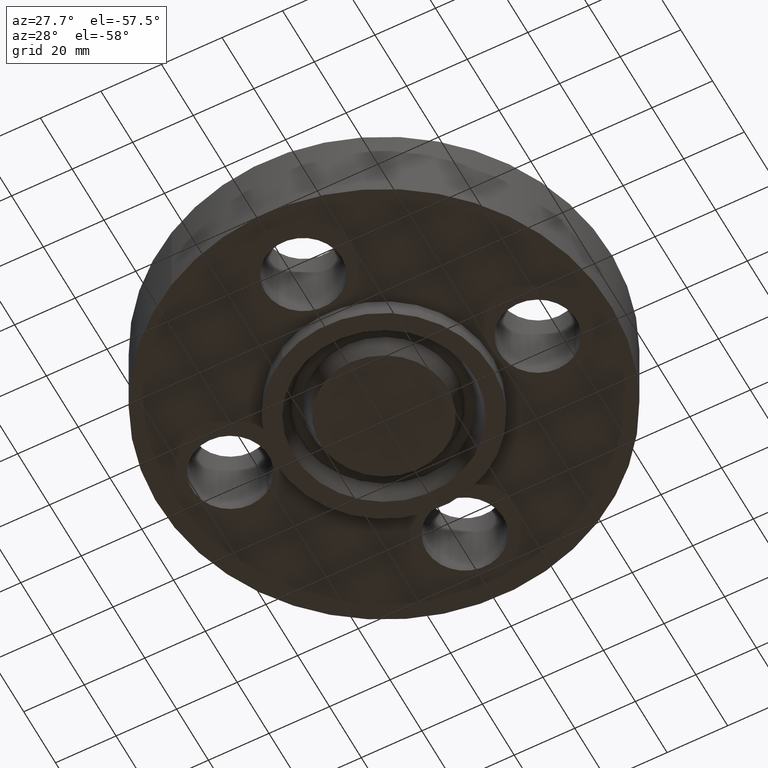
[diagram: clean part render]
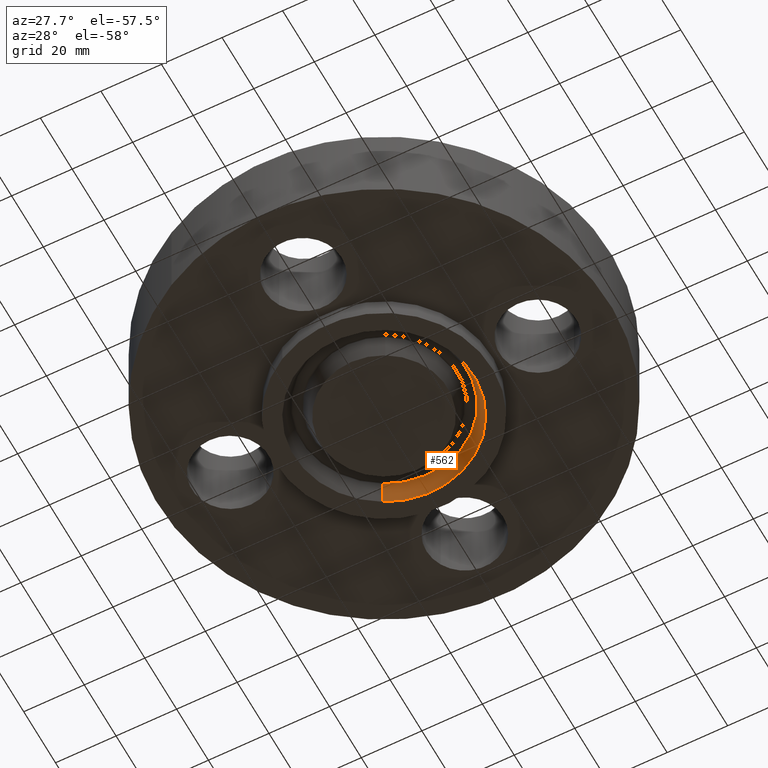
[diagram: same view with one face highlighted and labeled with its STEP entity id]
A machine part, auxiliary view. The second image highlights one B-rep face of the part: STEP entity #562.
In plain terms, the highlighted conical surface has half-angle 23 deg.
Its self-contained STEP definition (entity closure, byte-faithful):
#88=AXIS2_PLACEMENT_3D('Circle Axis2P3D',#86,#87,$) ;
#497=AXIS2_PLACEMENT_3D('Cone Axis2P3D',#494,#495,#496) ;
#518=AXIS2_PLACEMENT_3D('Circle Axis2P3D',#516,#517,$) ;
#81=CARTESIAN_POINT('Vertex',(0.561886731246,-1.02852676254,-0.250000000001)) ;
#83=CARTESIAN_POINT('Vertex',(-0.561886731246,1.02852676254,-0.250000000001)) ;
#86=CARTESIAN_POINT('Axis2P3D Location',(-1.39870617276E-016,1.39870617276E-016,-0.250000000001)) ;
#463=CARTESIAN_POINT('Vertex',(-0.514854363898,0.942434591585,-0.0188873350169)) ;
#465=CARTESIAN_POINT('Vertex',(0.514854363898,-0.942434591585,-0.0188873350169)) ;
#494=CARTESIAN_POINT('Axis2P3D Location',(0.,0.,-0.0188873350169)) ;
#499=CARTESIAN_POINT('Line Origine',(-0.538370547572,0.985480677062,-0.134443667509)) ;
#504=CARTESIAN_POINT('Line Origine',(0.538370547572,-0.985480677062,-0.134443667509)) ;
#516=CARTESIAN_POINT('Axis2P3D Location',(0.,0.,-0.0188873350169)) ;
#87=DIRECTION('Axis2P3D Direction',(0.,0.,-0.0393700787402)) ;
#495=DIRECTION('Axis2P3D Direction',(-0.,-0.,-0.0393700787402)) ;
#496=DIRECTION('Axis2P3D XDirection',(-0.0188750212049,0.0345504945626,0.)) ;
#500=DIRECTION('Vector Direction',(-0.00737505833565,0.0134999537303,-0.0362403485611)) ;
#505=DIRECTION('Vector Direction',(0.00737505833565,-0.0134999537303,-0.0362403485611)) ;
#517=DIRECTION('Axis2P3D Direction',(0.,0.,0.0393700787402)) ;
#501=VECTOR('Line Direction',#500,0.0393700787402) ;
#506=VECTOR('Line Direction',#505,0.0393700787402) ;
#557=ORIENTED_EDGE('',*,*,#90,.T.) ;
#558=ORIENTED_EDGE('',*,*,#508,.T.) ;
#559=ORIENTED_EDGE('',*,*,#520,.T.) ;
#560=ORIENTED_EDGE('',*,*,#503,.F.) ;
#562=ADVANCED_FACE('PartBody',(#561),#498,.F.) ;
#89=CIRCLE('generated circle',#88,1.172) ;
#519=CIRCLE('generated circle',#518,1.07389849401) ;
#498=CONICAL_SURFACE('Cone',#497,1.07389849401,0.401425727959) ;
#90=EDGE_CURVE('',#84,#82,#89,.T.) ;
#503=EDGE_CURVE('',#84,#464,#502,.F.) ;
#508=EDGE_CURVE('',#82,#466,#507,.F.) ;
#520=EDGE_CURVE('',#466,#464,#519,.T.) ;
#556=EDGE_LOOP('',(#557,#558,#559,#560)) ;
#561=FACE_OUTER_BOUND('',#556,.T.) ;
#502=LINE('Line',#499,#501) ;
#507=LINE('Line',#504,#506) ;
#82=VERTEX_POINT('',#81) ;
#84=VERTEX_POINT('',#83) ;
#464=VERTEX_POINT('',#463) ;
#466=VERTEX_POINT('',#465) ;